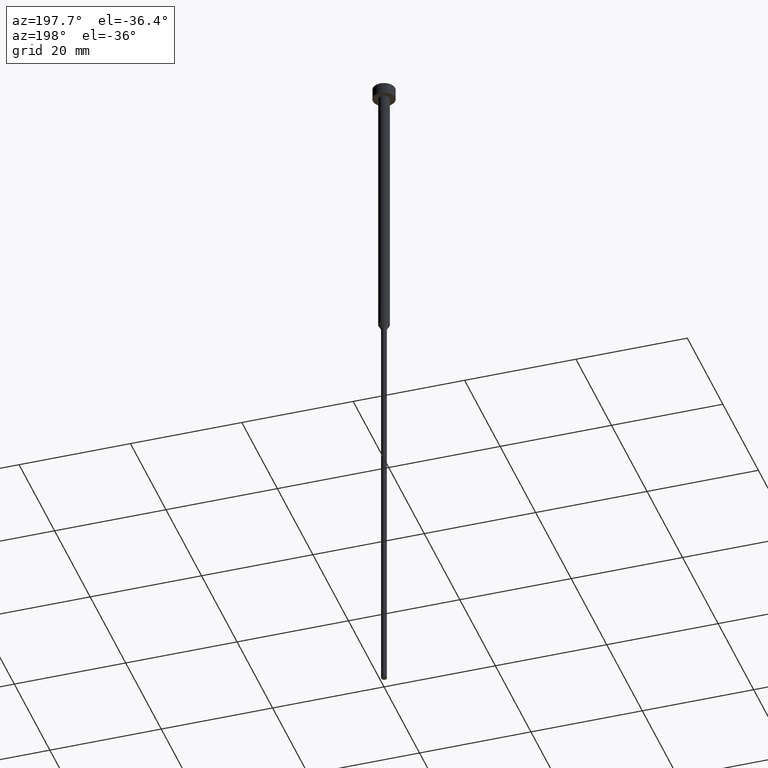
[diagram: clean part render]
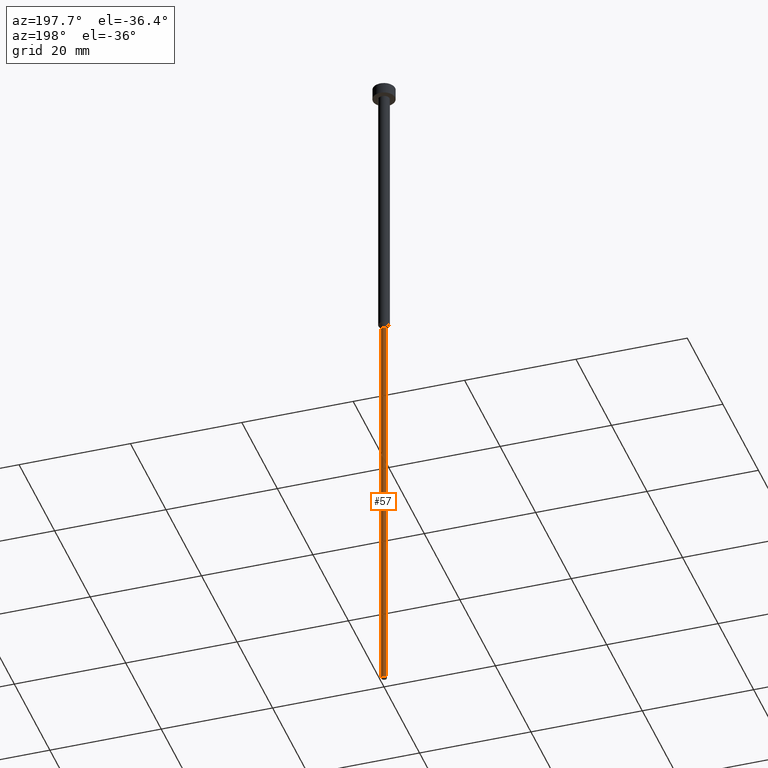
[diagram: same view with one face highlighted and labeled with its STEP entity id]
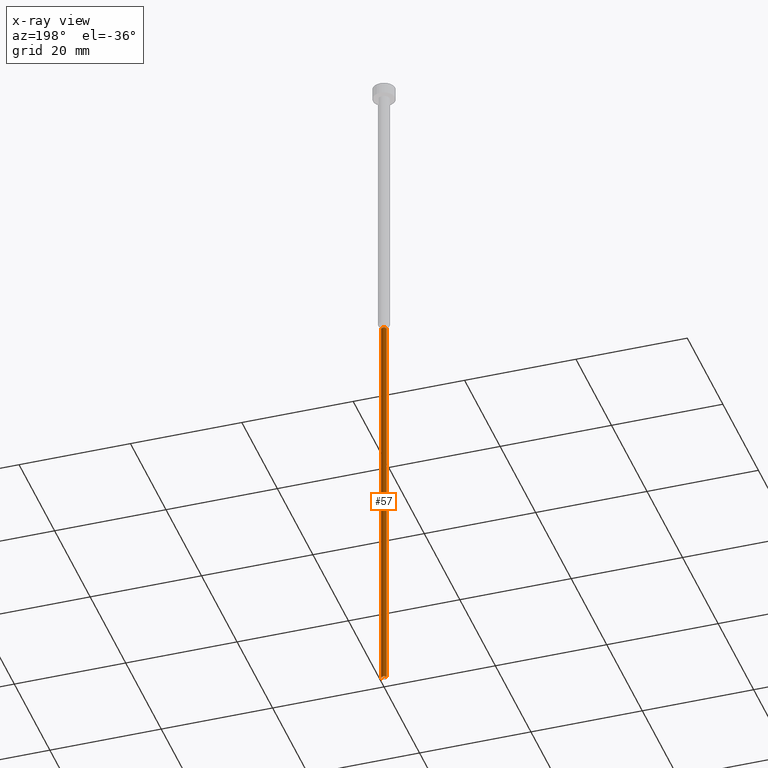
[diagram: x-ray of the same camera — body ghosted, the highlighted face saturated]
A machine part, auxiliary view. The second image highlights one B-rep face of the part: STEP entity #57.
The next image is the same camera in x-ray: the body ghosted, the highlighted face saturated — about 0% of this face is hidden behind the body in this view.
In plain terms, the highlighted cylindrical surface (edge-blend (fillet) strip) has radius 0.5 mm, axis along (-0, -0, 1).
Its self-contained STEP definition (entity closure, byte-faithful):
#2 = EDGE_CURVE ( 'NONE', #6, #30, #67, .T. ) ;
#6 = VERTEX_POINT ( 'NONE', #146 ) ;
#17 = ORIENTED_EDGE ( 'NONE', *, *, #353, .F. ) ;
#30 = VERTEX_POINT ( 'NONE', #326 ) ;
#44 = AXIS2_PLACEMENT_3D ( 'NONE', #163, #276, #111 ) ;
#56 = DIRECTION ( 'NONE',  ( 1.000000000000000000, 0.000000000000000000, 0.000000000000000000 ) ) ;
#57 = ADVANCED_FACE ( 'NONE', ( #213 ), #209, .T. ) ;
#67 = LINE ( 'NONE', #291, #296 ) ;
#70 = LINE ( 'NONE', #284, #167 ) ;
#81 = CARTESIAN_POINT ( 'NONE',  ( 0.000000000000000000, 0.000000000000000000, -125.0000000000000000 ) ) ;
#96 = AXIS2_PLACEMENT_3D ( 'NONE', #99, #292, #321 ) ;
#99 = CARTESIAN_POINT ( 'NONE',  ( 0.000000000000000000, 0.000000000000000000, 0.000000000000000000 ) ) ;
#111 = DIRECTION ( 'NONE',  ( 1.000000000000000000, 0.000000000000000000, 0.000000000000000000 ) ) ;
#112 = VERTEX_POINT ( 'NONE', #316 ) ;
#146 = CARTESIAN_POINT ( 'NONE',  ( -0.5000000000000000000, 6.123233995736766036E-17, -125.0000000000000000 ) ) ;
#150 = CIRCLE ( 'NONE', #301, 0.5000000000000000000 ) ;
#152 = ORIENTED_EDGE ( 'NONE', *, *, #168, .T. ) ;
#163 = CARTESIAN_POINT ( 'NONE',  ( 0.000000000000000000, 0.000000000000000000, -50.86602540378444814 ) ) ;
#167 = VECTOR ( 'NONE', #235, 1000.000000000000000 ) ;
#168 = EDGE_CURVE ( 'NONE', #112, #6, #150, .T. ) ;
#178 = VERTEX_POINT ( 'NONE', #221 ) ;
#199 = CIRCLE ( 'NONE', #44, 0.5000000000000000000 ) ;
#200 = EDGE_CURVE ( 'NONE', #178, #30, #199, .T. ) ;
#207 = ORIENTED_EDGE ( 'NONE', *, *, #200, .F. ) ;
#209 = CYLINDRICAL_SURFACE ( 'NONE', #96, 0.5000000000000000000 ) ;
#213 = FACE_OUTER_BOUND ( 'NONE', #346, .T. ) ;
#221 = CARTESIAN_POINT ( 'NONE',  ( 0.5000000000000000000, 0.000000000000000000, -50.86602540378444814 ) ) ;
#230 = ORIENTED_EDGE ( 'NONE', *, *, #2, .T. ) ;
#235 = DIRECTION ( 'NONE',  ( -0.000000000000000000, -0.000000000000000000, 1.000000000000000000 ) ) ;
#260 = DIRECTION ( 'NONE',  ( -0.000000000000000000, -0.000000000000000000, 1.000000000000000000 ) ) ;
#276 = DIRECTION ( 'NONE',  ( -0.000000000000000000, -0.000000000000000000, 1.000000000000000000 ) ) ;
#284 = CARTESIAN_POINT ( 'NONE',  ( 0.5000000000000000000, 0.000000000000000000, 0.000000000000000000 ) ) ;
#291 = CARTESIAN_POINT ( 'NONE',  ( -0.5000000000000000000, 6.123233995736766036E-17, 0.000000000000000000 ) ) ;
#292 = DIRECTION ( 'NONE',  ( -0.000000000000000000, -0.000000000000000000, 1.000000000000000000 ) ) ;
#296 = VECTOR ( 'NONE', #260, 1000.000000000000000 ) ;
#300 = DIRECTION ( 'NONE',  ( -0.000000000000000000, -0.000000000000000000, 1.000000000000000000 ) ) ;
#301 = AXIS2_PLACEMENT_3D ( 'NONE', #81, #300, #56 ) ;
#316 = CARTESIAN_POINT ( 'NONE',  ( 0.5000000000000000000, 0.000000000000000000, -125.0000000000000000 ) ) ;
#321 = DIRECTION ( 'NONE',  ( 1.000000000000000000, 0.000000000000000000, 0.000000000000000000 ) ) ;
#326 = CARTESIAN_POINT ( 'NONE',  ( -0.5000000000000000000, 6.123233995736766036E-17, -50.86602540378444814 ) ) ;
#346 = EDGE_LOOP ( 'NONE', ( #152, #230, #207, #17 ) ) ;
#353 = EDGE_CURVE ( 'NONE', #112, #178, #70, .T. ) ;